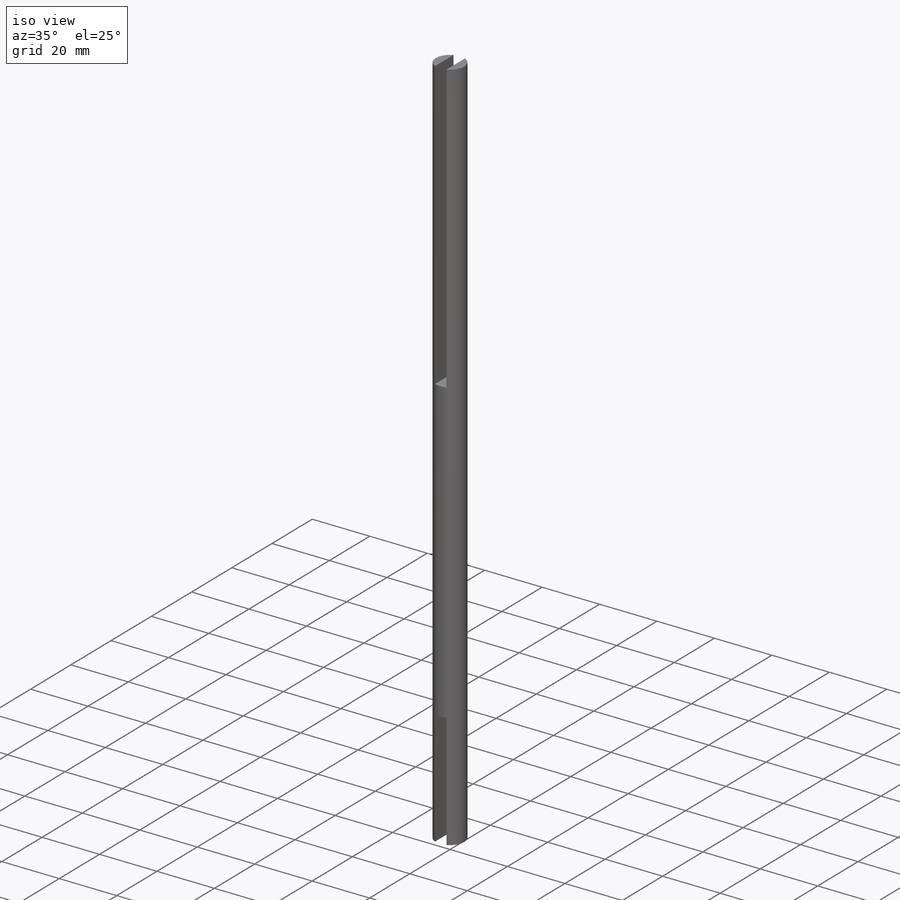
[diagram: iso view]
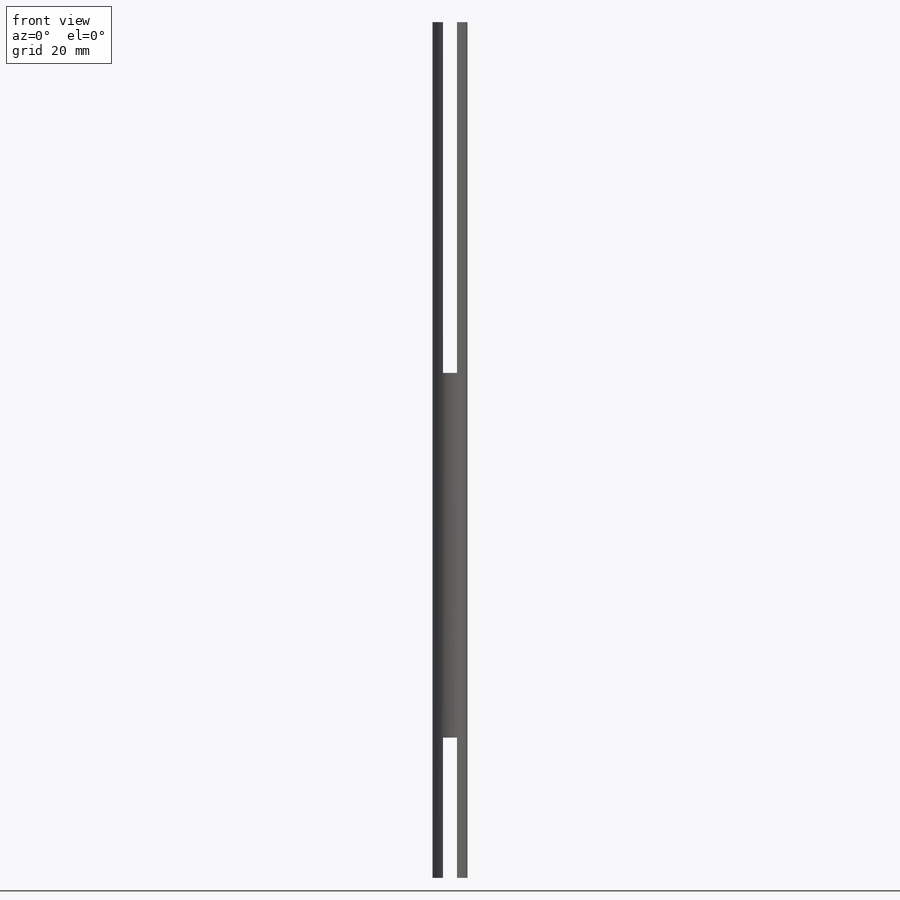
[diagram: front view]
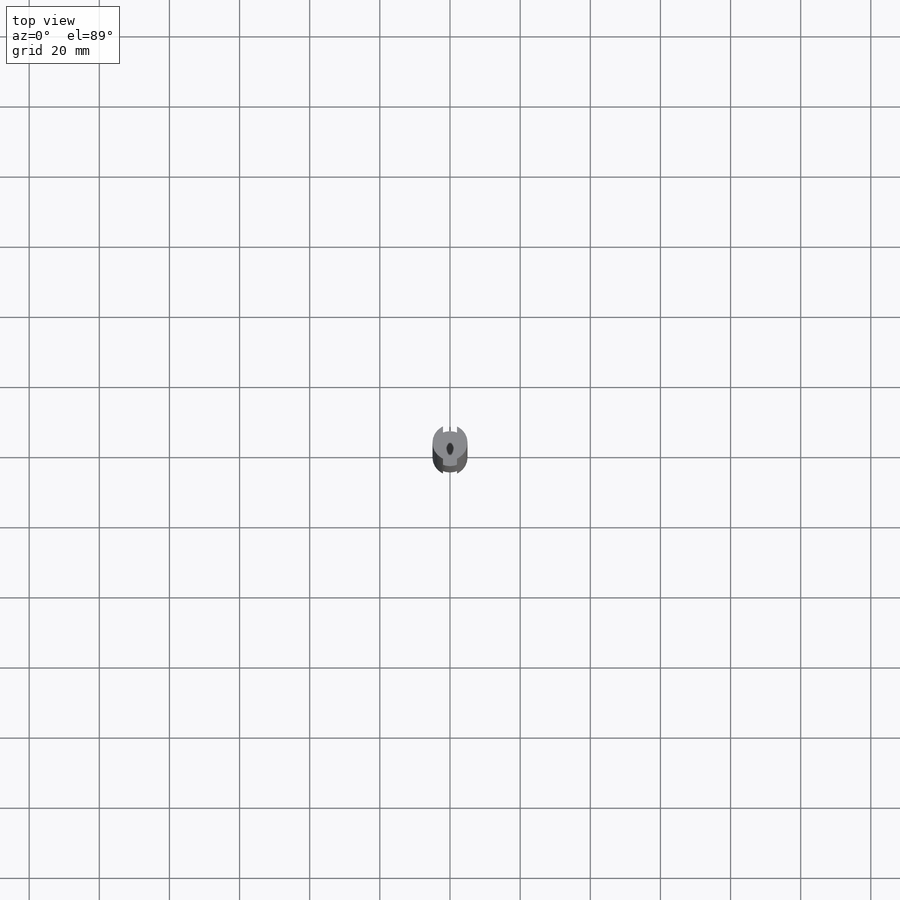
[diagram: top view]
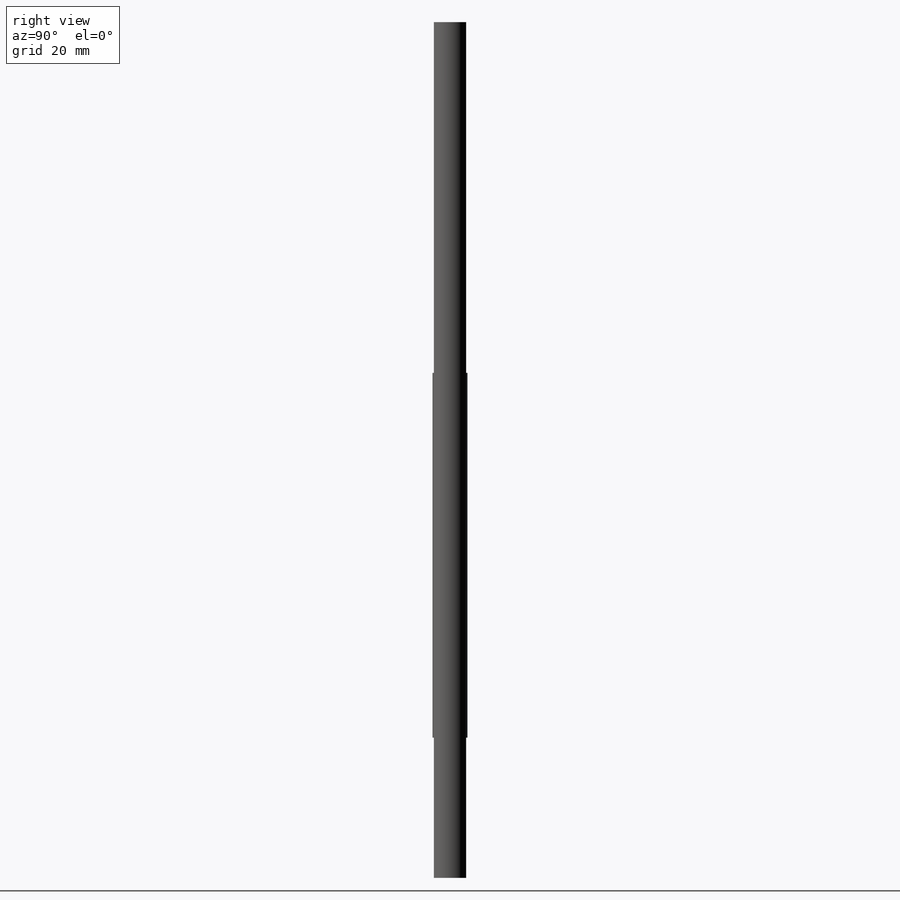
[diagram: right view]
SOLIDWORKS PART (.sldprt)
format: sldprt  version: not decoded by parser v0  size: 124,928 bytes
history: native  units: mm
features: sketch x3, extrude x3, material x1 (+13 scaffold rows collapsed)
feature tree (20):
  scaffold x13  (default folders/planes/origin — collapsed)
  material  "Material <not specified>"
  sketch  "Sketch1"  dims[D1=10.0mm]
  extrude  "Boss-Extrude1"  Depth=104mm
  sketch  "Sketch2"  dims[D1=4.0mm]
  extrude  "Boss-Extrude2"  Depth=100mm
  extrude  "Boss-Extrude3"  [1 undecoded]
  sketch  "Sketch2<2>"  dims[D1=40.0mm]
decode coverage: 5 of 6 modeling features carry decoded parameters
note: 1 parameter value undecoded
note: suppression state not decoded; provenance and decode notes live in map.json
